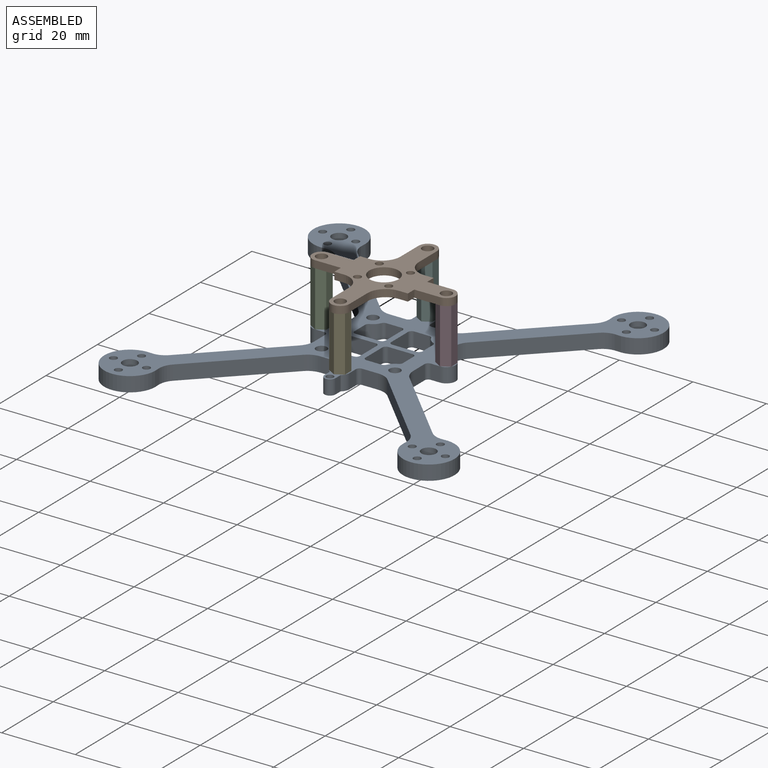
[diagram: assembled view]
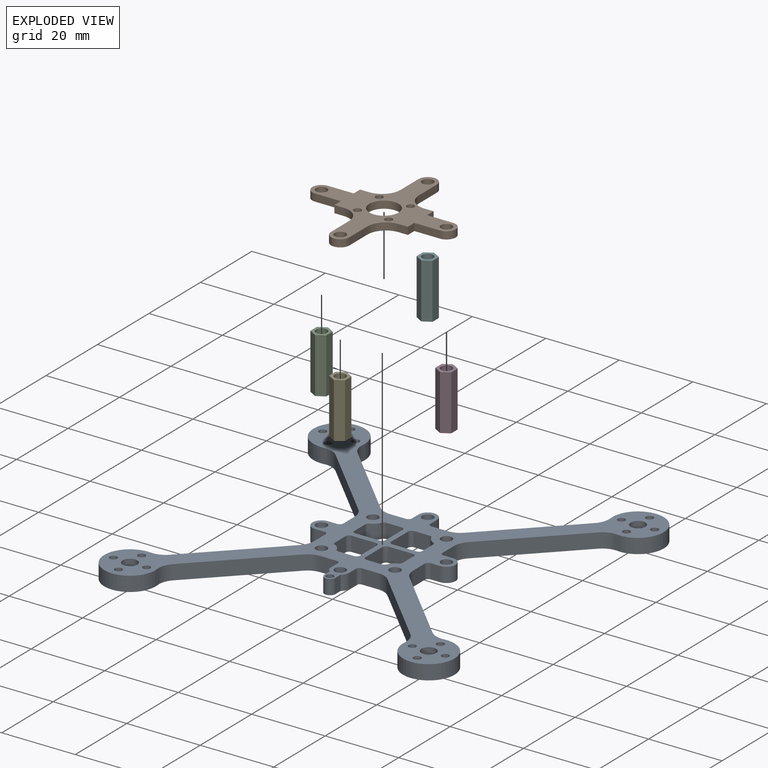
[diagram: exploded view]
GUIDED TOUR — MATED ASSEMBLY (Onshape document 589fe7c0ca26e30fe918013d, AutoMate assembly 589fe7c0ca26e30fe918013d_0812592c868d84a6552c4ee0_b36db87315dfbec41a6f9907_default)

This assembly has 6 components, labeled P0..P5 below (a component is one placed occurrence of a part; the same part can appear more than once), held together by 5 mates. A mate is a constraint between two components; its type names the relative motion it leaves free:
  FASTENED — locks the two components together rigidly (no relative motion).
Axis/direction vectors are unit vectors and 'through' points are millimeter coordinates, both in the assembly's world frame.

MATES
  1. FASTENED "Fastened 5": P2 <-> P1, direction (0.000, 0.000, -1.000) through (-17.00, 0.00, 0.00) mm
  2. FASTENED "Fastened 1": P0 <-> P4, direction (0.000, 0.000, -1.000) through (0.00, -17.00, -15.00) mm
  3. FASTENED "Fastened 4": P5 <-> P1, direction (0.000, 0.000, -1.000) through (0.00, 17.00, 0.00) mm
  4. FASTENED "Fastened 2": P4 <-> P1, direction (0.000, 0.000, -1.000) through (0.00, -17.00, 0.00) mm
  5. FASTENED "Fastened 3": P3 <-> P1, direction (0.000, 0.000, 1.000) through (17.00, 0.00, 0.00) mm

ASSEMBLY ORDER
  1. P5 — the base component [order verified]
  2. P4 [order verified]
  3. P3 [order verified]
  4. P2 [order verified]
  5. P1 [order verified]
  6. P0 [order verified]
Order-tag legend:
  [order verified] — this step's position reverses a verified removal order: the component was checked to insert without passing through the ones already placed.

Of the 6 components, 5 carry the full construction recipe — the FeatureScript program that regenerates the part's solid from scratch; the rest are supplied as boundary geometry only.
Each toured component is shown spotlighted twice — in the assembled view, then in the exploded view, where a leader line traces a displaced component back to its assembled socket (saturated green if recipe-attached, orange if geometry-only; every other component desaturated gray) — followed by its recipe or geometry summary and the mates that hold it.
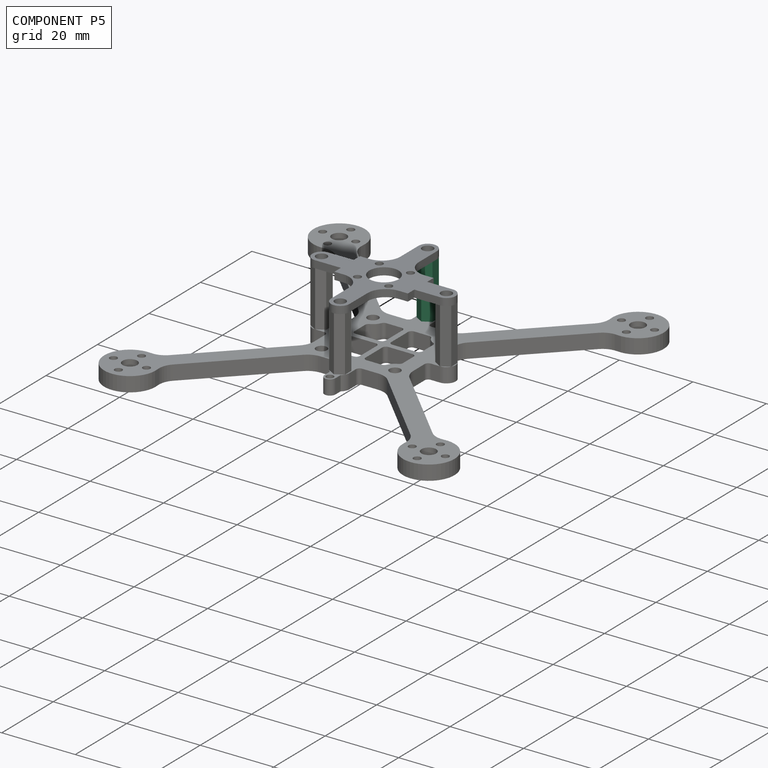
[diagram: component P5 — assembled]
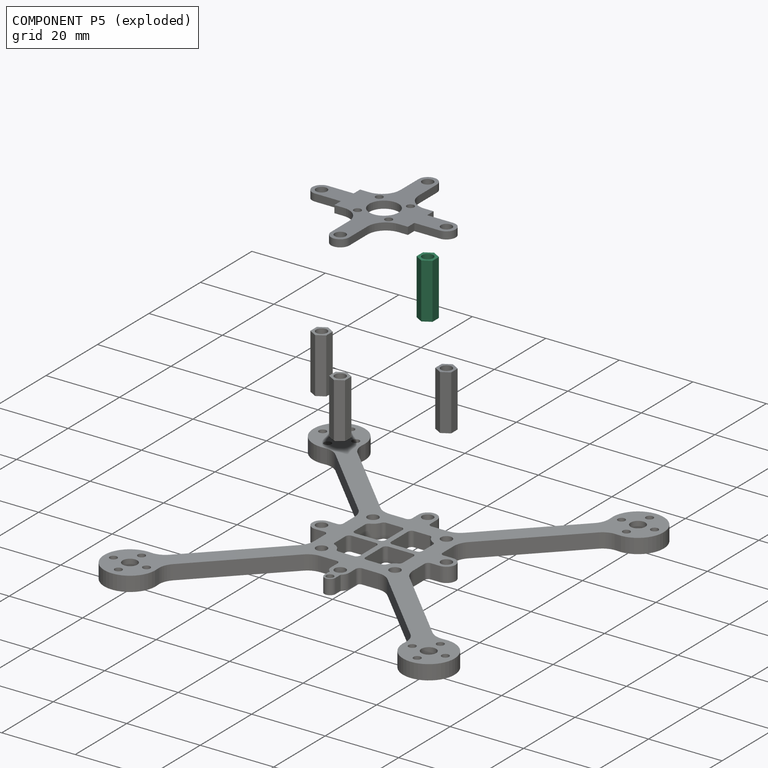
[diagram: component P5 — exploded]
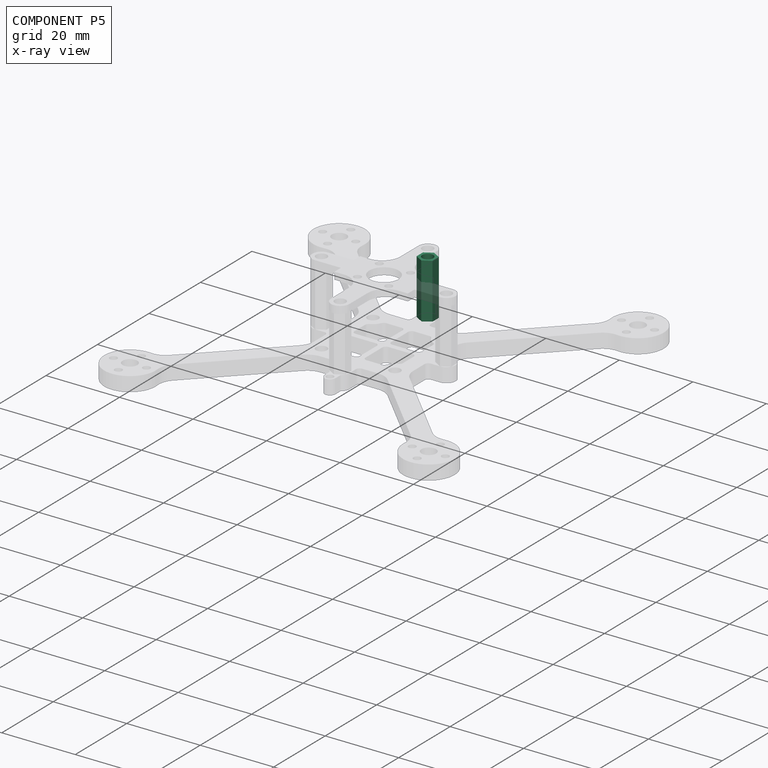
[diagram: component P5 — x-ray view]
COMPONENT P5 — same part as P2 (CADFS 00523613); its construction recipe is shown at P2.
Held by: FASTENED mate "Fastened 4" to P1.
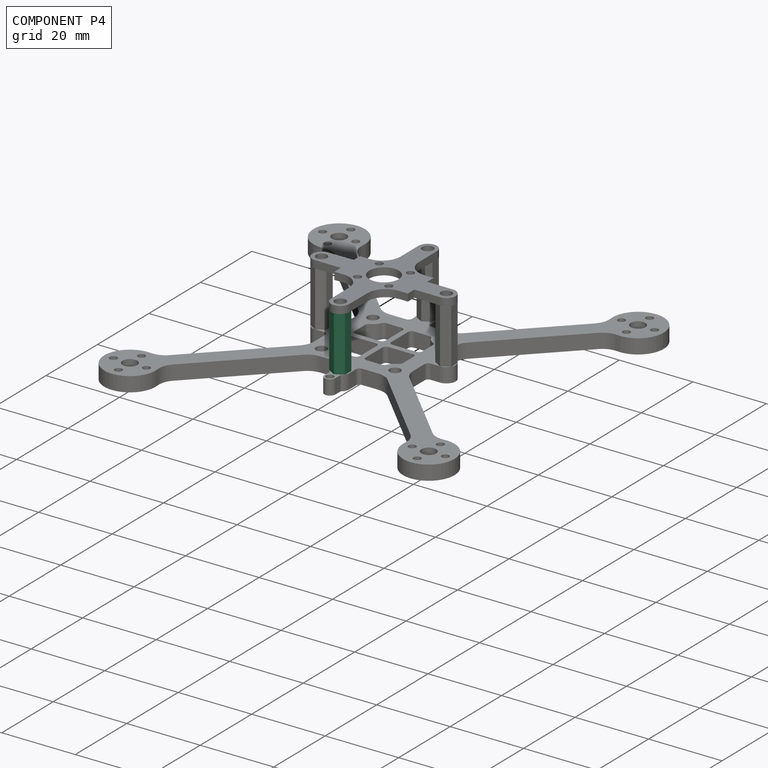
[diagram: component P4 — assembled]
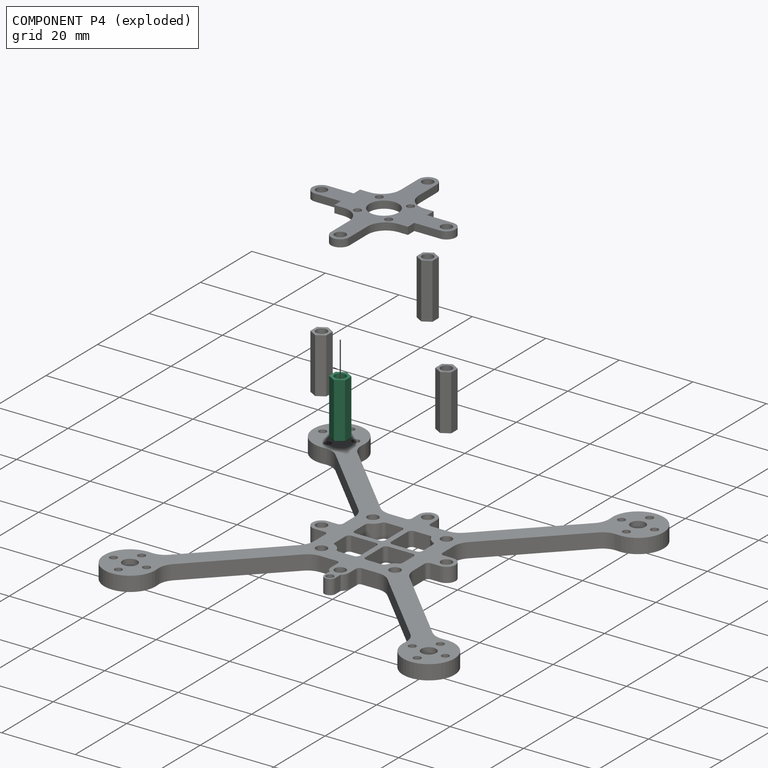
[diagram: component P4 — exploded]
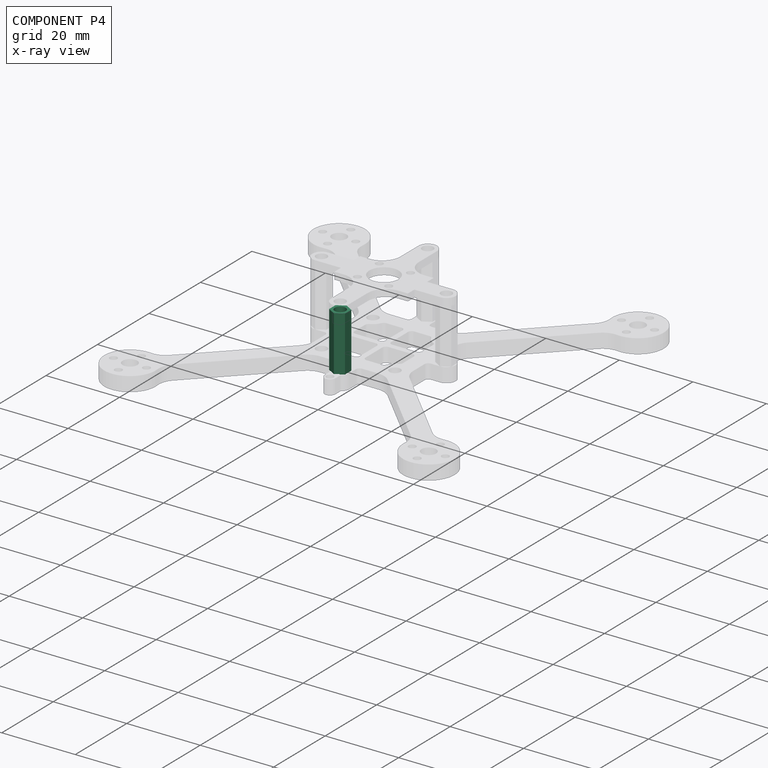
[diagram: component P4 — x-ray view]
COMPONENT P4 — same part as P2 (CADFS 00523613); its construction recipe is shown at P2.
Held by: FASTENED mate "Fastened 1" to P0; FASTENED mate "Fastened 2" to P1.
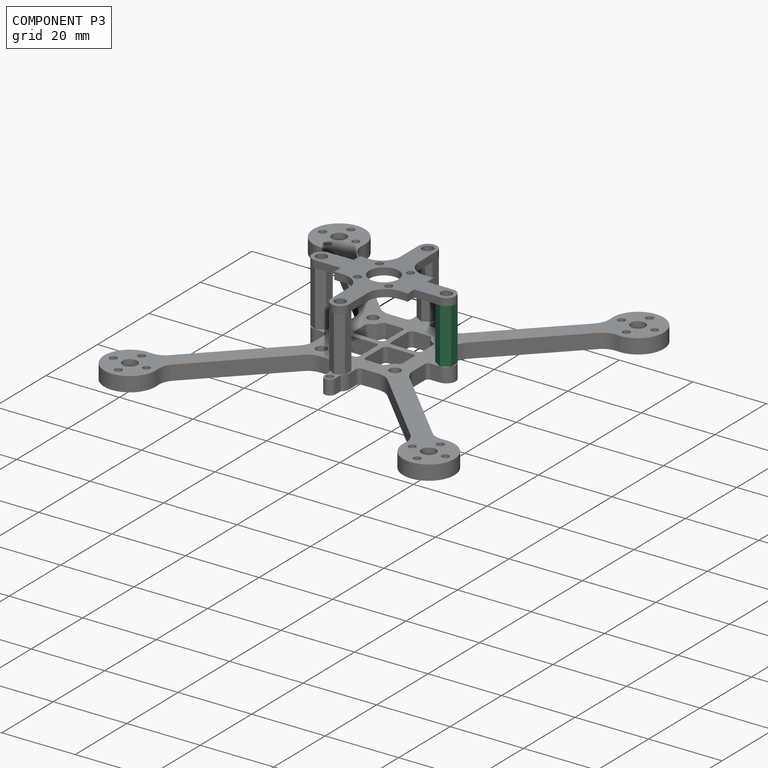
[diagram: component P3 — assembled]
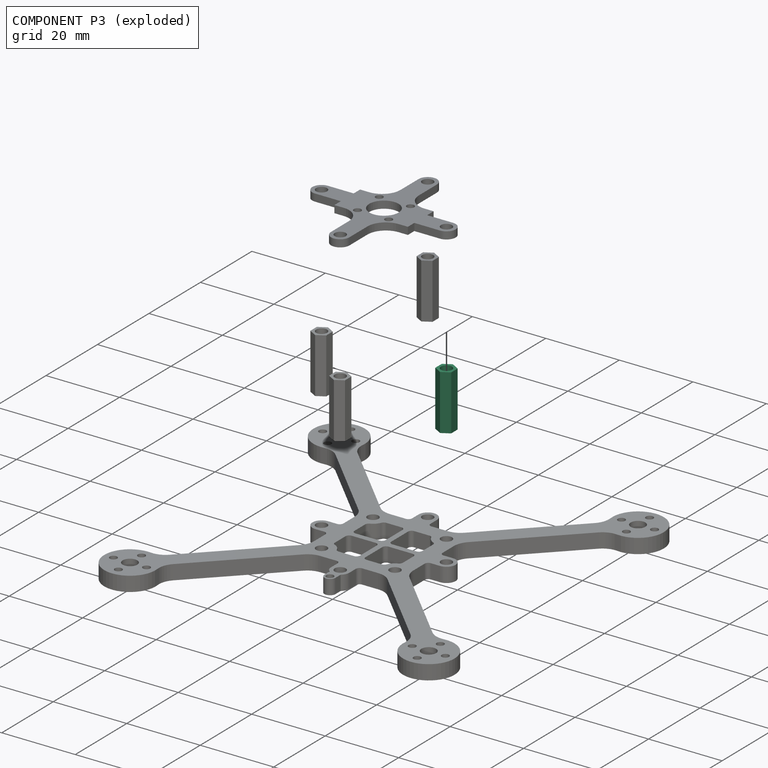
[diagram: component P3 — exploded]
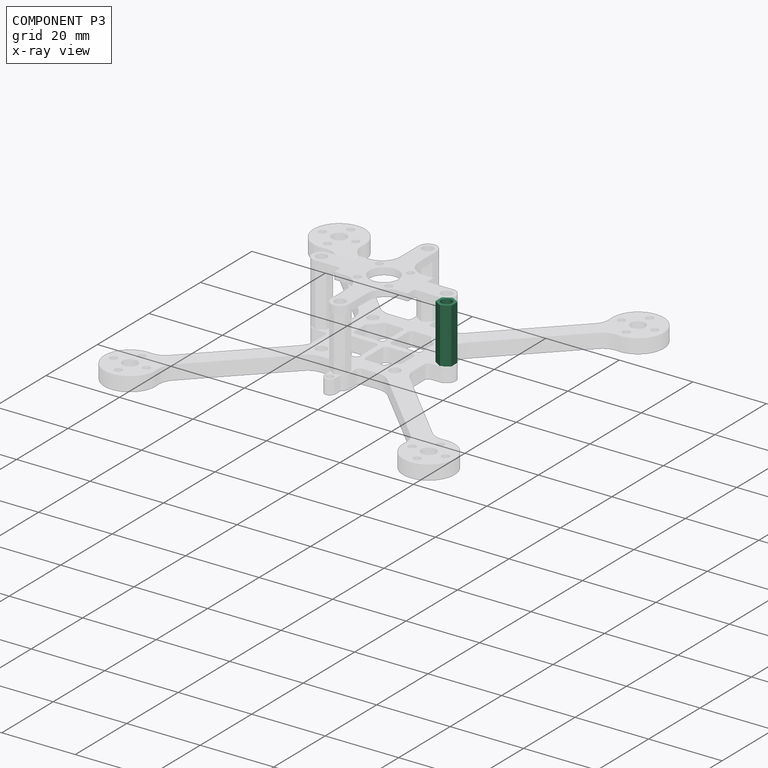
[diagram: component P3 — x-ray view]
COMPONENT P3 — same part as P2 (CADFS 00523613); its construction recipe is shown at P2.
Held by: FASTENED mate "Fastened 3" to P1.
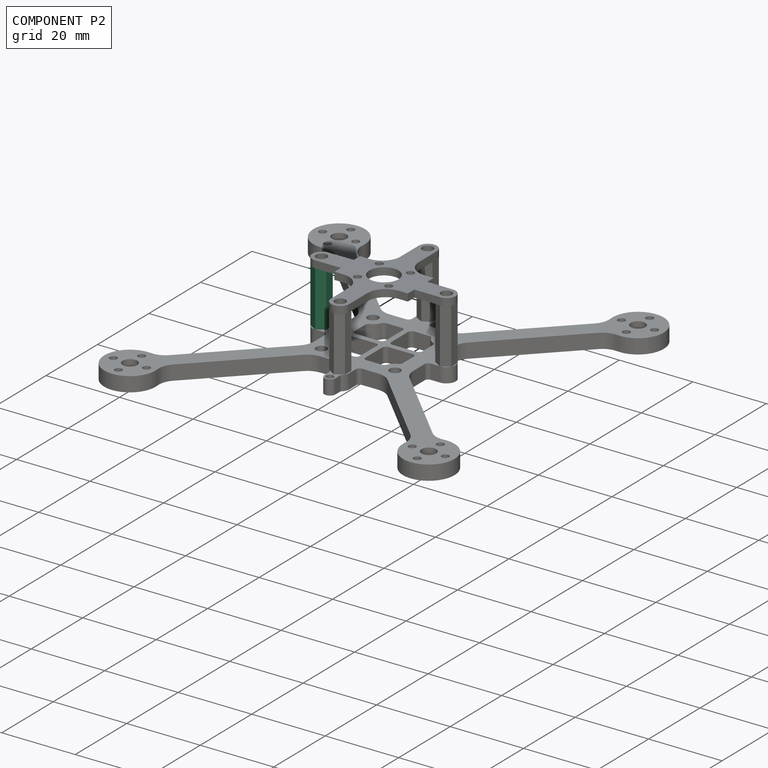
[diagram: component P2 — assembled]
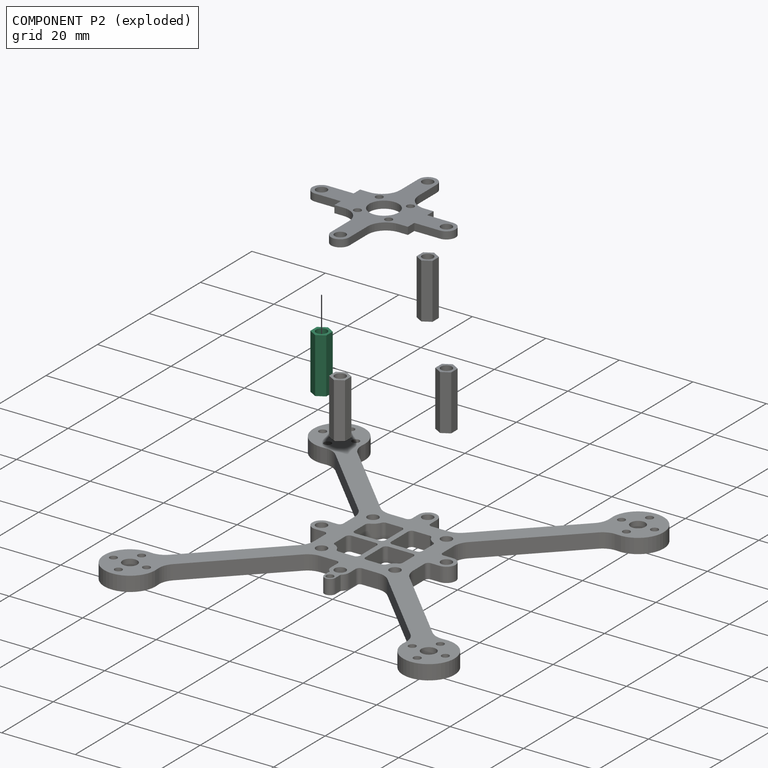
[diagram: component P2 — exploded]
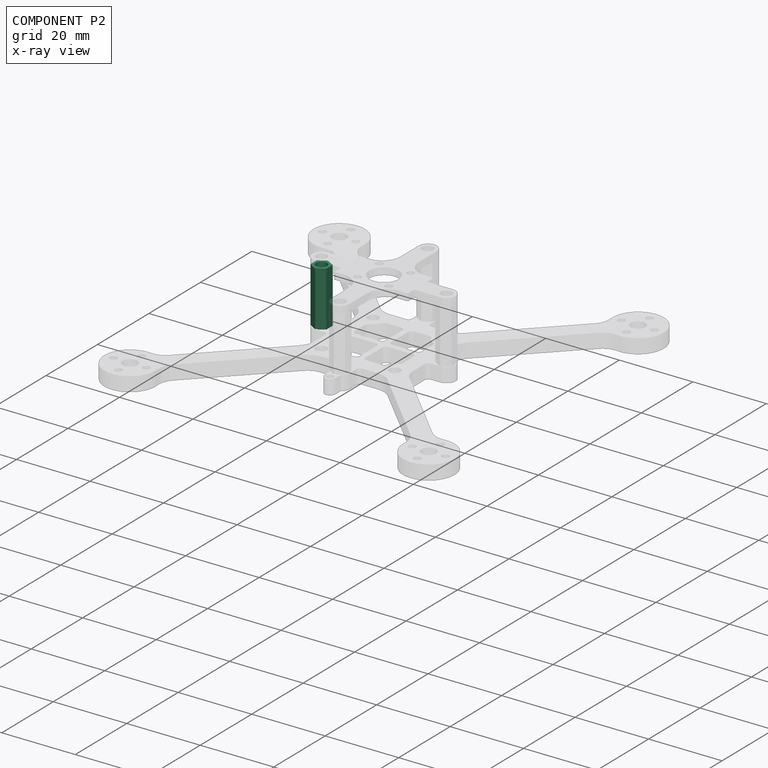
[diagram: component P2 — x-ray view]
COMPONENT P2 — recipe-attached (CADFS 00523613, mesh-verified: the recipe's output STEP matches this component's geometry to below the mesh-comparison resolution (tessellation chordal tolerance ~0.0246 mm)).
Held by: FASTENED mate "Fastened 5" to P1.
Construction recipe (FeatureScript — the CAD program that rebuilds this solid; sketch coordinates are in the units given by the * unit suffixes, e.g. mm):

FeatureScript 1511;
import(path : "onshape/std/geometry.fs", version : "1511.0");
import(path : "onshape/std/common.fs", version : "1511.0");
const mm = millimeter;
const VERTEX = EntityType.VERTEX;
const EDGE = EntityType.EDGE;
const FACE = EntityType.FACE;
const BODY = EntityType.BODY;
function v(x, y){return vector(x, y);}
function OD(order){return orderDisambiguation(order);}
function OSD(set){return originalSetDisambiguation(set);}
function TD(topology){return topologyDisambiguation(topology);}
function TDD(query){return trueDependencyDisambiguation(query);}
function sQuery(a, b, c) {return sketchEntityQuery(a, b, c);}

annotation { "Feature Type Name" : "Feature", "Feature Type Description" : "" }
export const myFeature = defineFeature(function(context is Context, id is Id, definition is map)
    precondition{}
    {
        {
            var Q0;
            Q0=qCreatedBy(makeId("Top.planeOp"),FACE);
            var sketch = newSketch(context, id + "F0", { "sketchPlane" : qUnion([Q0])});
            skCircle(sketch, "E0.cCircle", {"center": v(0, 0) * mm, "radius": 2.5 * mm, "construction": true});
            skLineSegment(sketch, "E0.0", {"start": v(-2.17, -1.25) * mm, "end": v(-2.17, 1.25) * mm});
            skLineSegment(sketch, "E0.1", {"start": v(-2.17, 1.25) * mm, "end": v(0, 2.5) * mm});
            skLineSegment(sketch, "E0.2", {"start": v(0, 2.5) * mm, "end": v(2.17, 1.25) * mm});
            skLineSegment(sketch, "E0.3", {"start": v(2.17, 1.25) * mm, "end": v(2.17, -1.25) * mm});
            skLineSegment(sketch, "E0.4", {"start": v(2.17, -1.25) * mm, "end": v(0, -2.5) * mm});
            skLineSegment(sketch, "E0.5", {"start": v(0, -2.5) * mm, "end": v(-2.17, -1.25) * mm});
            skCircle(sketch, "E1", {"center": v(0, 0) * mm, "radius": 1.5 * mm});
            skSolve(sketch);
        }
        {
            var Q0;
            Q0 = qSketchRegion(id + "F0", true);
            extrude(context, id + "F1", {"entities" : qUnion([Q0]), "depth" : 15 * mm, "offsetDistance" : 25 * mm});
        }
    });
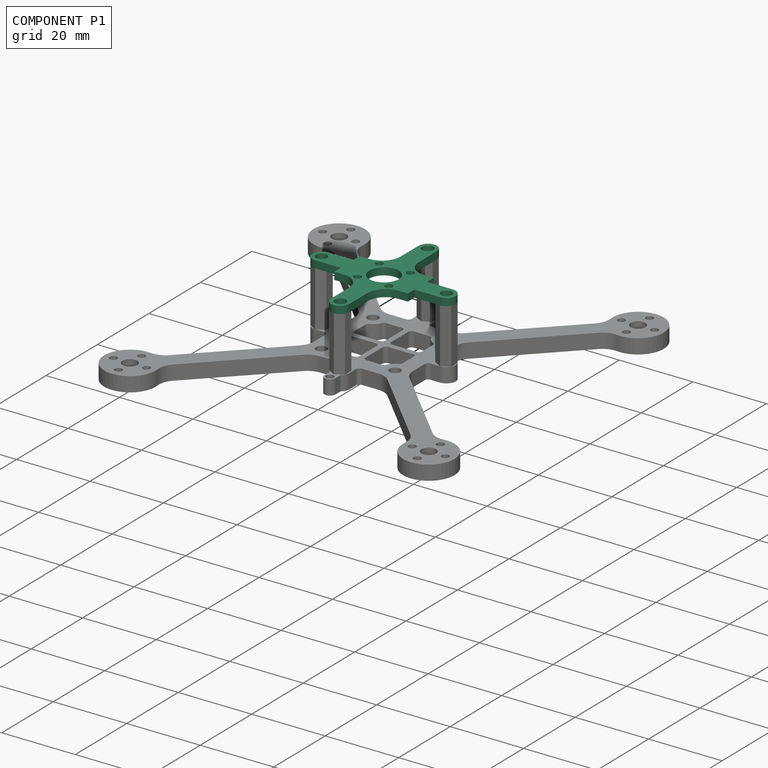
[diagram: component P1 — assembled]
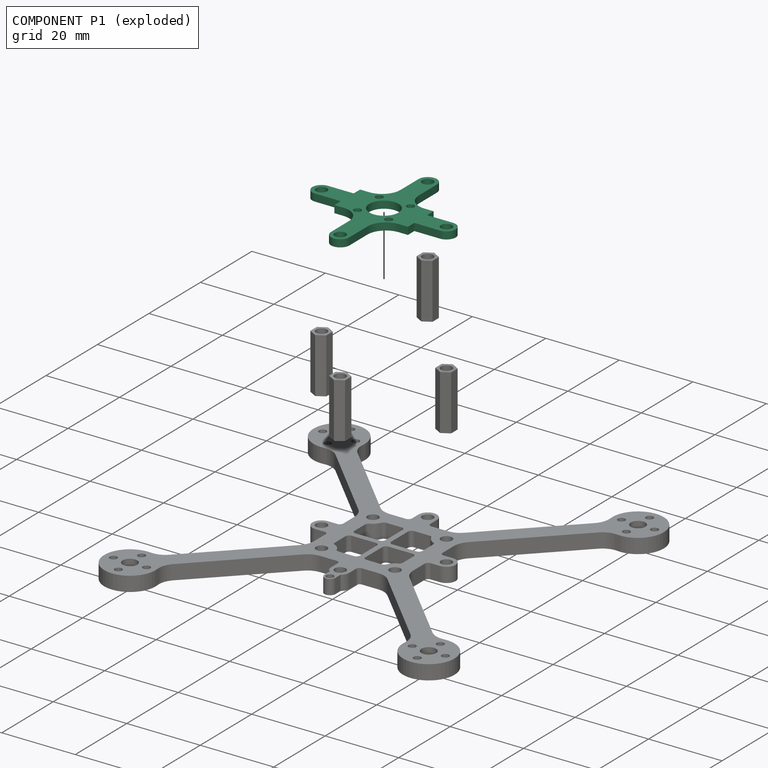
[diagram: component P1 — exploded]
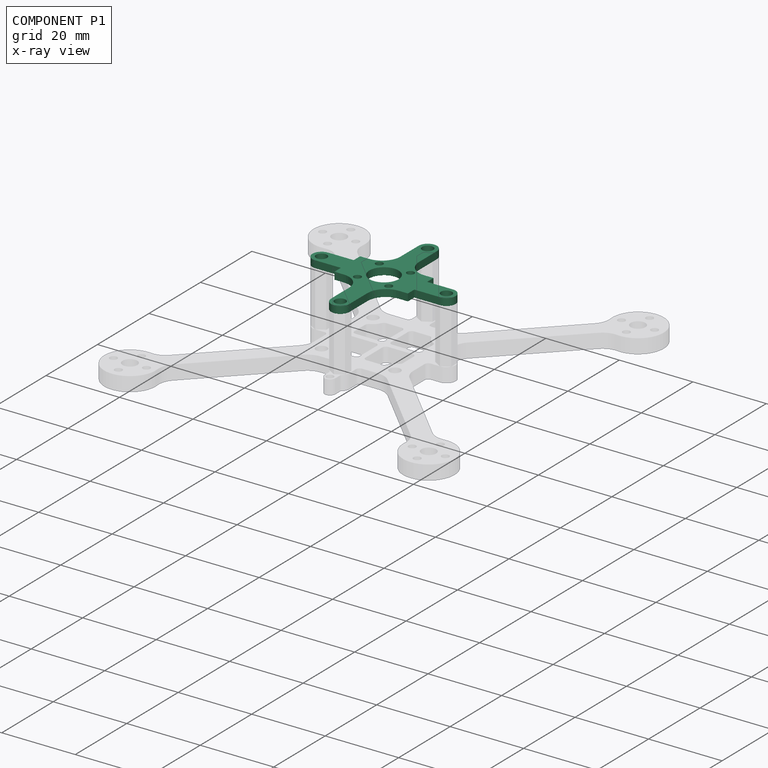
[diagram: component P1 — x-ray view]
COMPONENT P1 — recipe-attached (CADFS 00523612, mesh-verified: the recipe's output STEP matches this component's geometry to below the mesh-comparison resolution (tessellation chordal tolerance ~0.0828 mm)).
Held by: FASTENED mate "Fastened 5" to P2; FASTENED mate "Fastened 4" to P5; FASTENED mate "Fastened 2" to P4; FASTENED mate "Fastened 3" to P3.
Construction recipe (FeatureScript — the CAD program that rebuilds this solid; sketch coordinates are in the units given by the * unit suffixes, e.g. mm):

FeatureScript 1511;
import(path : "onshape/std/geometry.fs", version : "1511.0");
import(path : "onshape/std/common.fs", version : "1511.0");
const mm = millimeter;
const VERTEX = EntityType.VERTEX;
const EDGE = EntityType.EDGE;
const FACE = EntityType.FACE;
const BODY = EntityType.BODY;
function v(x, y){return vector(x, y);}
function OD(order){return orderDisambiguation(order);}
function OSD(set){return originalSetDisambiguation(set);}
function TD(topology){return topologyDisambiguation(topology);}
function TDD(query){return trueDependencyDisambiguation(query);}
function sQuery(a, b, c) {return sketchEntityQuery(a, b, c);}

annotation { "Feature Type Name" : "Feature", "Feature Type Description" : "" }
export const myFeature = defineFeature(function(context is Context, id is Id, definition is map)
    precondition{}
    {
        {
            var Q0;
            Q0=qCreatedBy(makeId("Top.planeOp"),FACE);
            var sketch = newSketch(context, id + "F0", { "sketchPlane" : qUnion([Q0])});
            skLineSegment(sketch, "E0.bottom", {"start": v(-2.5, 17) * mm, "end": v(2.5, 17) * mm});
            skLineSegment(sketch, "E0.top", {"start": v(-2.5, -17) * mm, "end": v(2.5, -17) * mm});
            skLineSegment(sketch, "E0.left", {"start": v(-2.5, 17) * mm, "end": v(-2.5, 10) * mm});
            skLineSegment(sketch, "E0.right", {"start": v(2.5, 17) * mm, "end": v(2.5, 10) * mm});
            skPoint(sketch, "E0.middle", {"position": v(0, 0) * mm});
            skCircle(sketch, "E1", {"center": v(0, 17) * mm, "radius": 2.5 * mm});
            skCircle(sketch, "E2", {"center": v(0, 17) * mm, "radius": 1.5 * mm});
            skCircle(sketch, "E3", {"center": v(0, -17) * mm, "radius": 1.5 * mm});
            skCircle(sketch, "E4", {"center": v(0, -17) * mm, "radius": 2.5 * mm});
            skLineSegment(sketch, "E5.bottom", {"start": v(-10, 5) * mm, "end": v(-7.5, 5) * mm});
            skLineSegment(sketch, "E5.top", {"start": v(-10, -5) * mm, "end": v(-7.5, -5) * mm});
            skLineSegment(sketch, "E5.left", {"start": v(-10, 5) * mm, "end": v(-10, -5) * mm});
            skLineSegment(sketch, "E5.right", {"start": v(10, 5) * mm, "end": v(10, -5) * mm});
            skLineSegment(sketch, "E6.bottom", {"start": v(17, -2.5) * mm, "end": v(-17, -2.5) * mm});
            skLineSegment(sketch, "E6.top", {"start": v(17, 2.5) * mm, "end": v(-17, 2.5) * mm});
            skLineSegment(sketch, "E6.left", {"start": v(17, -2.5) * mm, "end": v(17, 2.5) * mm});
            skLineSegment(sketch, "E6.right", {"start": v(-17, -2.5) * mm, "end": v(-17, 2.5) * mm});
            skCircle(sketch, "E7", {"center": v(-17, 0) * mm, "radius": 1.5 * mm});
            skCircle(sketch, "E8", {"center": v(-17, 0) * mm, "radius": 2.5 * mm});
            skCircle(sketch, "E9", {"center": v(17, 0) * mm, "radius": 2.5 * mm});
            skCircle(sketch, "E10", {"center": v(17, 0) * mm, "radius": 1.5 * mm});
            skCircle(sketch, "E11", {"center": v(0, 0) * mm, "radius": 4 * mm});
            skCircle(sketch, "E12", {"center": v(-4.24, 4.24) * mm, "radius": 1 * mm});
            skLineSegment(sketch, "E13", {"start": v(-4.24, 4.24) * mm, "end": v(0, 0) * mm});
            skCircle(sketch, "E14.1.0", {"center": v(-4.24, -4.24) * mm, "radius": 1 * mm});
            skCircle(sketch, "E14.2.0", {"center": v(4.24, -4.24) * mm, "radius": 1 * mm});
            skCircle(sketch, "E14.3.0", {"center": v(4.24, 4.24) * mm, "radius": 1 * mm});
            skLineSegment(sketch, "E15.trimOffspring", {"start": v(7.5, 5) * mm, "end": v(10, 5) * mm});
            skLineSegment(sketch, "E16.trimOffspring", {"start": v(7.5, -5) * mm, "end": v(10, -5) * mm});
            skLineSegment(sketch, "E17.trimOffspring", {"start": v(2.5, 3.12) * mm, "end": v(2.5, -3.12) * mm});
            skLineSegment(sketch, "E18.trimOffspring", {"start": v(-2.5, 3.12) * mm, "end": v(-2.5, -3.12) * mm});
            skLineSegment(sketch, "E19.trimOffspring", {"start": v(-2.5, -10) * mm, "end": v(-2.5, -17) * mm});
            skLineSegment(sketch, "E20.trimOffspring", {"start": v(2.5, -10) * mm, "end": v(2.5, -17) * mm});
            skPoint(sketch, "E21.visualSharp", {"position": v(-2.5, -5) * mm});
            skArc(sketch, "E21.filletArc", {"start": v(-2.5, -10) * mm, "mid": v(-3.96, -6.46) * mm, "end": v(-7.5, -5) * mm});
            skPoint(sketch, "E22.visualSharp", {"position": v(2.5, -5) * mm});
            skArc(sketch, "E22.filletArc", {"start": v(7.5, -5) * mm, "mid": v(3.96, -6.46) * mm, "end": v(2.5, -10) * mm});
            skPoint(sketch, "E23.visualSharp", {"position": v(2.5, 5) * mm});
            skArc(sketch, "E23.filletArc", {"start": v(2.5, 10) * mm, "mid": v(3.96, 6.46) * mm, "end": v(7.5, 5) * mm});
            skPoint(sketch, "E24.visualSharp", {"position": v(-2.5, 5) * mm});
            skArc(sketch, "E24.filletArc", {"start": v(-7.5, 5) * mm, "mid": v(-3.96, 6.46) * mm, "end": v(-2.5, 10) * mm});
            skSolve(sketch);
        }
        {
            var Q0;
            Q0 = qSketchRegion(id + "F0", true);
            extrude(context, id + "F1", {"entities" : qUnion([Q0]), "depth" : 2 * mm, "offsetDistance" : 25 * mm});
        }
    });
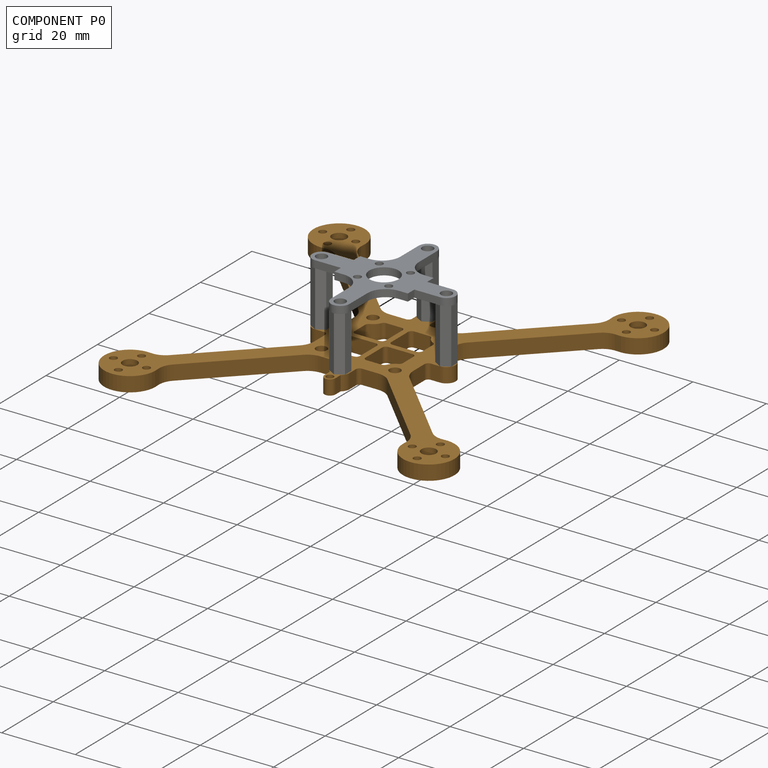
[diagram: component P0 — assembled]
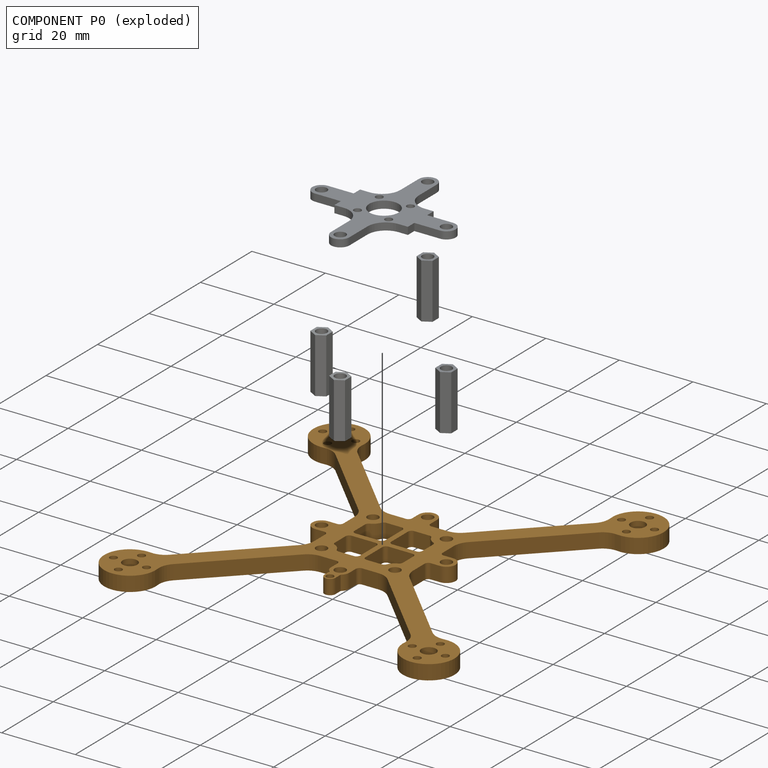
[diagram: component P0 — exploded]
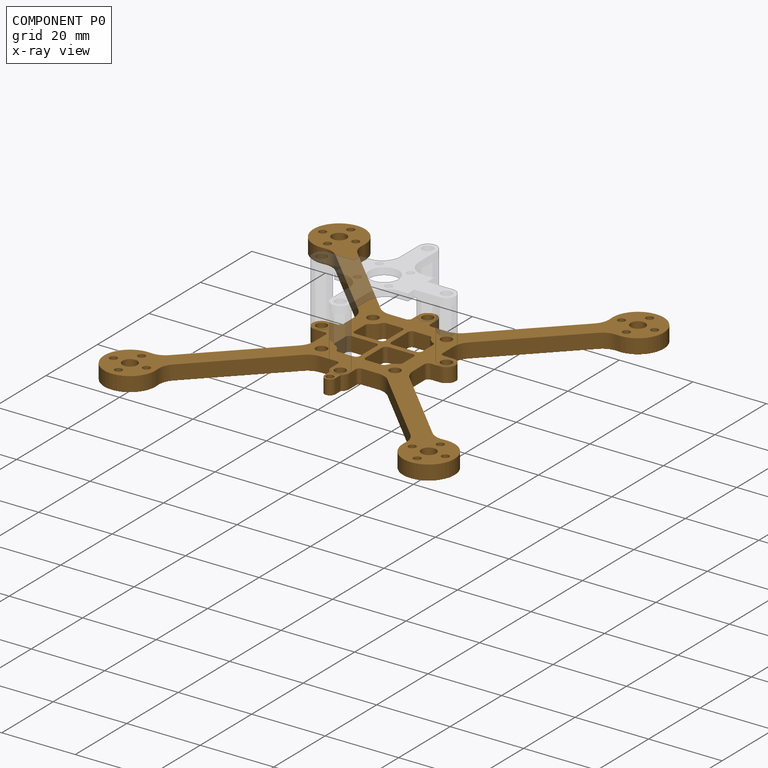
[diagram: component P0 — x-ray view]
COMPONENT P0 — geometry summary (no construction recipe available for this part):
  bounding box: 95.3 x 95.3 x 4.0 mm
  B-rep topology: 1 solid, 131 faces, 774 edges
  volume: 6830 mm^3 (19% of its bounding box)
  symmetry: 2-fold rotationally symmetric about the y axis; mirror-symmetric across its x mid-plane, z mid-plane
Held by: FASTENED mate "Fastened 1" to P4.
PROVENANCE & LICENSES
Assembly (occurrences, transforms, mates, per-part STEP geometry): AutoMate dataset, Zenodo record 7776208, CC0.
Construction recipes: CADFS (HuggingFace VladPyatov/CADFS, CC-BY-4.0, layered over the ABC dataset), FeatureScript reconstruction programs keyed by ABC model id.
Join: ABC meta listings map ABC model id -> Onshape documentId; within a shared document, parts are matched by geometric signature (bounding-box dims + volume at 0.1% relative tolerance, exact B-rep face/solid counts).
Verification: 5 of this assembly's 6 components carry a recipe attachment, and every attachment is mesh-verified: the CADFS STEP and the AutoMate member STEP were compared as meshes in their shared local frame (symmetric sampled-point-to-mesh distance); worst across the 5 attachments: below the mesh-comparison resolution (tessellation chordal tolerance ~0.0828 mm) on a 55 mm part.
Renders: orthographic iso camera (az 35 / el 25); the floor grid conveys scale (grid pitch printed in each image; no ruler). In the exploded view each component is displaced by its stored offset vector: the offsets alone carry the explosion direction (mate normal/axis signs are not orientation cues and do not encode it), and separation distances are assigned per mate-chain, not proportionally to assembly-order depth.
